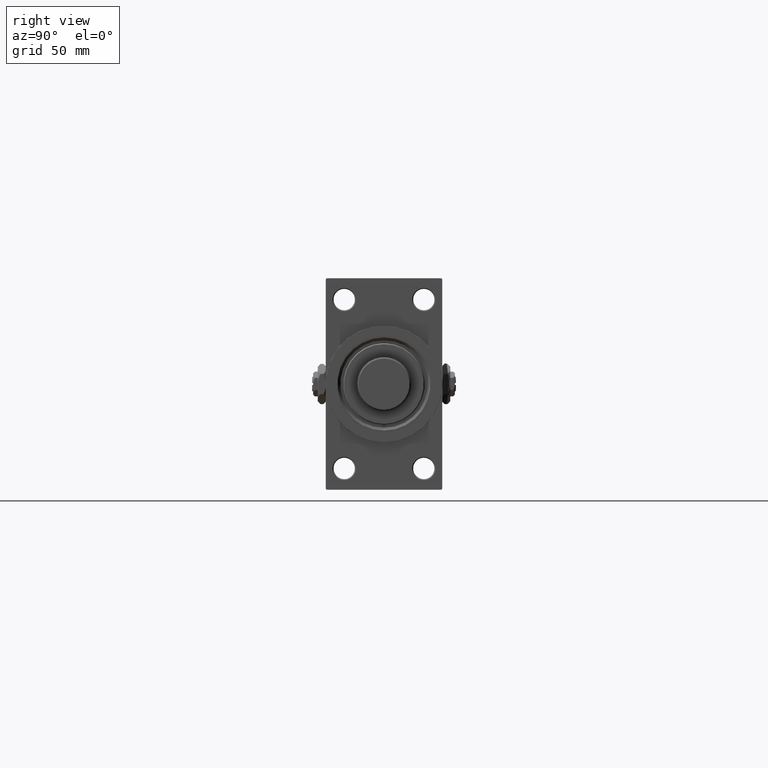
[diagram: clean part render]
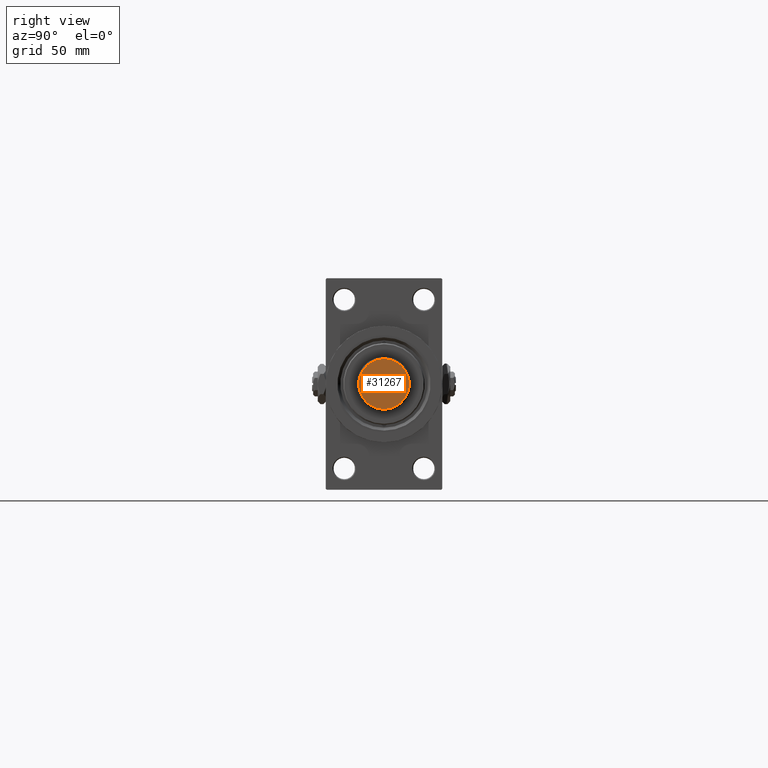
[diagram: same view with one face highlighted and labeled with its STEP entity id]
A machine part, right view. The second image highlights one B-rep face of the part: STEP entity #31267.
In plain terms, the highlighted planar face has unit normal (1, 0, 0).
Its self-contained STEP definition (entity closure, byte-faithful):
#1825 = CIRCLE ( 'NONE', #4220, 13.00000000000000000 ) ;
#4158 = EDGE_LOOP ( 'NONE', ( #35332, #48159 ) ) ;
#4220 = AXIS2_PLACEMENT_3D ( 'NONE', #42874, #31345, #38368 ) ;
#5875 = DIRECTION ( 'NONE',  ( 0.000000000000000000, 0.000000000000000000, 1.000000000000000000 ) ) ;
#10315 = FACE_OUTER_BOUND ( 'NONE', #4158, .T. ) ;
#10397 = EDGE_CURVE ( 'NONE', #15074, #27796, #1825, .T. ) ;
#13582 = AXIS2_PLACEMENT_3D ( 'NONE', #29323, #26071, #22573 ) ;
#15074 = VERTEX_POINT ( 'NONE', #15987 ) ;
#15987 = CARTESIAN_POINT ( 'NONE',  ( 13.00000000000000000, 0.000000000000000000, 0.000000000000000000 ) ) ;
#22573 = DIRECTION ( 'NONE',  ( 1.000000000000000000, 0.000000000000000000, -0.000000000000000000 ) ) ;
#24634 = CARTESIAN_POINT ( 'NONE',  ( 0.000000000000000000, 0.000000000000000000, 0.000000000000000000 ) ) ;
#25340 = EDGE_CURVE ( 'NONE', #27796, #15074, #48533, .T. ) ;
#25826 = PLANE ( 'NONE',  #13582 ) ;
#26071 = DIRECTION ( 'NONE',  ( 0.000000000000000000, 0.000000000000000000, 1.000000000000000000 ) ) ;
#26133 = AXIS2_PLACEMENT_3D ( 'NONE', #24634, #5875, #47661 ) ;
#27796 = VERTEX_POINT ( 'NONE', #30272 ) ;
#29323 = CARTESIAN_POINT ( 'NONE',  ( 0.000000000000000000, 0.000000000000000000, 0.000000000000000000 ) ) ;
#30272 = CARTESIAN_POINT ( 'NONE',  ( -13.00000000000000000, 1.622657008870242882E-15, 0.000000000000000000 ) ) ;
#31267 = ADVANCED_FACE ( 'NONE', ( #10315 ), #25826, .T. ) ;
#31345 = DIRECTION ( 'NONE',  ( 0.000000000000000000, 0.000000000000000000, 1.000000000000000000 ) ) ;
#35332 = ORIENTED_EDGE ( 'NONE', *, *, #10397, .T. ) ;
#38368 = DIRECTION ( 'NONE',  ( 1.000000000000000000, 0.000000000000000000, 0.000000000000000000 ) ) ;
#42874 = CARTESIAN_POINT ( 'NONE',  ( 0.000000000000000000, 0.000000000000000000, 0.000000000000000000 ) ) ;
#47661 = DIRECTION ( 'NONE',  ( 1.000000000000000000, 0.000000000000000000, 0.000000000000000000 ) ) ;
#48159 = ORIENTED_EDGE ( 'NONE', *, *, #25340, .T. ) ;
#48533 = CIRCLE ( 'NONE', #26133, 13.00000000000000000 ) ;